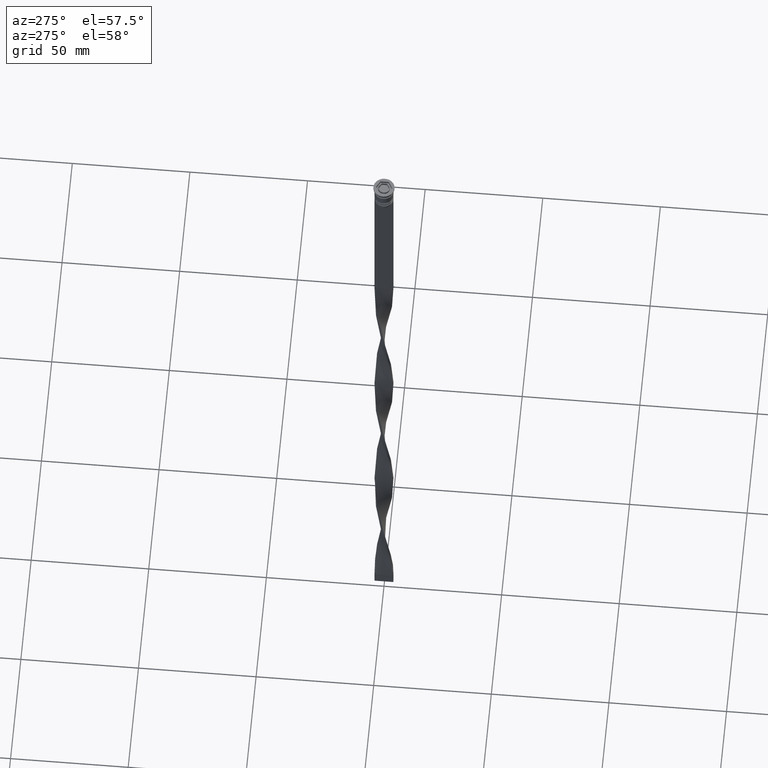
[diagram: clean part render]
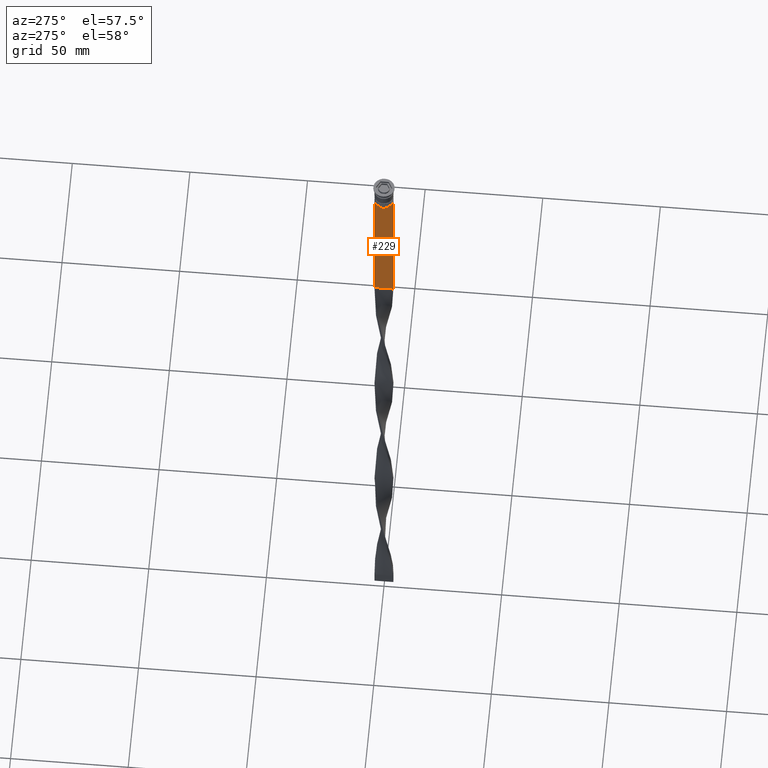
[diagram: same view with one face highlighted and labeled with its STEP entity id]
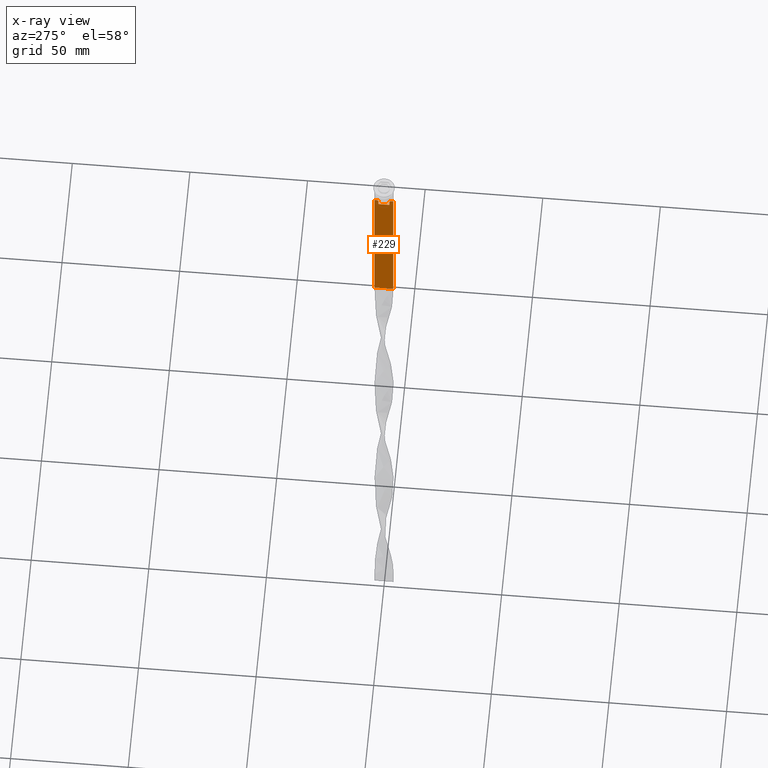
[diagram: x-ray of the same camera — body ghosted, the highlighted face saturated]
A machine part, auxiliary view. The second image highlights one B-rep face of the part: STEP entity #229.
The next image is the same camera in x-ray: the body ghosted, the highlighted face saturated — about 0% of this face is hidden behind the body in this view.
In plain terms, the highlighted planar face has unit normal (-1, 0, 0).
Its self-contained STEP definition (entity closure, byte-faithful):
#55 = ORIENTED_EDGE ( 'NONE', *, *, #612, .F. ) ;
#72 = EDGE_CURVE ( 'NONE', #4083, #3348, #4045, .T. ) ;
#106 = VERTEX_POINT ( 'NONE', #1279 ) ;
#130 = CARTESIAN_POINT ( 'NONE',  ( -0.5000000000000000000, 2.856571371417138572, -9.500000000000000000 ) ) ;
#131 = DIRECTION ( 'NONE',  ( 0.000000000000000000, -1.000000000000000000, 0.000000000000000000 ) ) ;
#188 = CARTESIAN_POINT ( 'NONE',  ( -0.5000000000000000000, -4.000000000000000000, -9.500000000000000000 ) ) ;
#196 = CARTESIAN_POINT ( 'NONE',  ( -0.5000000000000000000, 2.347338918861097135, 0.000000000000000000 ) ) ;
#198 = CARTESIAN_POINT ( 'NONE',  ( -0.5000000000000000000, 2.347338918861097135, -12.50000000000000000 ) ) ;
#229 = ADVANCED_FACE ( 'NONE', ( #289 ), #347, .T. ) ;
#244 = CARTESIAN_POINT ( 'NONE',  ( -0.5000000000000000000, -4.000000000000000000, -9.500000000000000000 ) ) ;
#289 = FACE_OUTER_BOUND ( 'NONE', #1049, .T. ) ;
#321 = LINE ( 'NONE', #3166, #2686 ) ;
#347 = PLANE ( 'NONE',  #1817 ) ;
#527 = VERTEX_POINT ( 'NONE', #2042 ) ;
#531 = VERTEX_POINT ( 'NONE', #802 ) ;
#532 = EDGE_CURVE ( 'NONE', #1357, #4083, #2663, .T. ) ;
#548 = CARTESIAN_POINT ( 'NONE',  ( -0.5000000000000000000, -2.347338918861097135, -10.00000000000000000 ) ) ;
#551 = DIRECTION ( 'NONE',  ( -0.000000000000000000, -0.000000000000000000, 1.000000000000000000 ) ) ;
#555 = EDGE_CURVE ( 'NONE', #819, #3615, #1814, .T. ) ;
#576 = LINE ( 'NONE', #4080, #1623 ) ;
#612 = EDGE_CURVE ( 'NONE', #1724, #1357, #3093, .T. ) ;
#667 = ORIENTED_EDGE ( 'NONE', *, *, #2550, .F. ) ;
#706 = VECTOR ( 'NONE', #2957, 1000.000000000000000 ) ;
#721 = CARTESIAN_POINT ( 'NONE',  ( -0.5000000000000000000, 4.000000000000000000, -9.500000000000000000 ) ) ;
#729 = ORIENTED_EDGE ( 'NONE', *, *, #2777, .F. ) ;
#773 = DIRECTION ( 'NONE',  ( 0.000000000000000000, 0.000000000000000000, -1.000000000000000000 ) ) ;
#802 = CARTESIAN_POINT ( 'NONE',  ( -0.5000000000000000000, 2.347338918861097135, -10.00000000000000000 ) ) ;
#812 = CARTESIAN_POINT ( 'NONE',  ( -0.5000000000000000000, 2.517407211010871393, -9.833663366238582171 ) ) ;
#819 = VERTEX_POINT ( 'NONE', #721 ) ;
#821 = CARTESIAN_POINT ( 'NONE',  ( -0.5000000000000000000, -2.687095498514037839, -9.666937905752043037 ) ) ;
#903 = VECTOR ( 'NONE', #131, 1000.000000000000000 ) ;
#904 = ORIENTED_EDGE ( 'NONE', *, *, #4040, .F. ) ;
#914 = ORIENTED_EDGE ( 'NONE', *, *, #72, .F. ) ;
#961 = VECTOR ( 'NONE', #3706, 1000.000000000000000 ) ;
#1007 = CARTESIAN_POINT ( 'NONE',  ( -0.5000000000000000000, -2.856571371417138572, -9.500000000000000000 ) ) ;
#1049 = EDGE_LOOP ( 'NONE', ( #667, #2126, #1139, #3889, #3898, #729, #904, #914, #2333, #55, #1378, #1428 ) ) ;
#1086 = VECTOR ( 'NONE', #3017, 1000.000000000000000 ) ;
#1139 = ORIENTED_EDGE ( 'NONE', *, *, #555, .F. ) ;
#1151 = CARTESIAN_POINT ( 'NONE',  ( -0.5000000000000000000, -2.856571371417138572, -9.500000000000000000 ) ) ;
#1266 = EDGE_CURVE ( 'NONE', #819, #2524, #576, .T. ) ;
#1279 = CARTESIAN_POINT ( 'NONE',  ( -0.5000000000000000000, -4.000000000000000000, -9.500000000000000000 ) ) ;
#1357 = VERTEX_POINT ( 'NONE', #548 ) ;
#1378 = ORIENTED_EDGE ( 'NONE', *, *, #2875, .F. ) ;
#1389 = CARTESIAN_POINT ( 'NONE',  ( -0.5000000000000000000, 2.399999999999996803, -12.50000000000000000 ) ) ;
#1394 = CARTESIAN_POINT ( 'NONE',  ( -0.5000000000000000000, 3.867815921162741422, -9.500000000000000000 ) ) ;
#1397 = VERTEX_POINT ( 'NONE', #2098 ) ;
#1428 = ORIENTED_EDGE ( 'NONE', *, *, #2954, .F. ) ;
#1450 = DIRECTION ( 'NONE',  ( 0.000000000000000000, -1.000000000000000000, 0.000000000000000000 ) ) ;
#1549 = CARTESIAN_POINT ( 'NONE',  ( -0.5000000000000000000, -4.000000000000000000, -1.437742251701450202 ) ) ;
#1623 = VECTOR ( 'NONE', #3768, 1000.000000000000000 ) ;
#1724 = VERTEX_POINT ( 'NONE', #3721 ) ;
#1787 = CARTESIAN_POINT ( 'NONE',  ( -0.5000000000000000000, -4.000000000000000000, -9.500000000000000000 ) ) ;
#1814 = LINE ( 'NONE', #244, #961 ) ;
#1817 = AXIS2_PLACEMENT_3D ( 'NONE', #1549, #3505, #3175 ) ;
#1818 = DIRECTION ( 'NONE',  ( 0.000000000000000000, -1.000000000000000000, 0.000000000000000000 ) ) ;
#2008 = CARTESIAN_POINT ( 'NONE',  ( -0.5000000000000000000, -4.000000000000000000, -78.50000000000000000 ) ) ;
#2042 = CARTESIAN_POINT ( 'NONE',  ( -0.5000000000000000000, 2.856571371417138572, -9.500000000000000000 ) ) ;
#2077 = VECTOR ( 'NONE', #551, 1000.000000000000000 ) ;
#2080 = CARTESIAN_POINT ( 'NONE',  ( -0.5000000000000000000, -2.347338918861097135, -10.00000000000000000 ) ) ;
#2098 = CARTESIAN_POINT ( 'NONE',  ( -0.5000000000000000000, -4.000000000000000000, -78.50000000000000000 ) ) ;
#2104 = B_SPLINE_CURVE_WITH_KNOTS ( 'NONE', 3,
 ( #130, #3922, #812, #3326 ),
 .UNSPECIFIED., .F., .F.,
 ( 4, 4 ),
 ( 0.004956812174141195064, 0.005670477137898153989 ),
 .UNSPECIFIED. ) ;
#2126 = ORIENTED_EDGE ( 'NONE', *, *, #2597, .F. ) ;
#2318 = LINE ( 'NONE', #2008, #706 ) ;
#2333 = ORIENTED_EDGE ( 'NONE', *, *, #532, .F. ) ;
#2524 = VERTEX_POINT ( 'NONE', #3554 ) ;
#2550 = EDGE_CURVE ( 'NONE', #527, #531, #2104, .T. ) ;
#2568 = DIRECTION ( 'NONE',  ( 0.000000000000000000, 0.000000000000000000, -1.000000000000000000 ) ) ;
#2597 = EDGE_CURVE ( 'NONE', #3615, #527, #2766, .T. ) ;
#2663 = B_SPLINE_CURVE_WITH_KNOTS ( 'NONE', 3,
 ( #2080, #2781, #821, #1151 ),
 .UNSPECIFIED., .F., .F.,
 ( 4, 4 ),
 ( 0.01178336557230038641, 0.01249758354768160454 ),
 .UNSPECIFIED. ) ;
#2686 = VECTOR ( 'NONE', #2568, 1000.000000000000000 ) ;
#2692 = LINE ( 'NONE', #1389, #903 ) ;
#2722 = CARTESIAN_POINT ( 'NONE',  ( -0.5000000000000000000, -4.000000000000000000, -9.500000000000000000 ) ) ;
#2766 = LINE ( 'NONE', #2722, #3670 ) ;
#2777 = EDGE_CURVE ( 'NONE', #106, #1397, #321, .T. ) ;
#2781 = CARTESIAN_POINT ( 'NONE',  ( -0.5000000000000000000, -2.517408374291112416, -9.833662228483172285 ) ) ;
#2875 = EDGE_CURVE ( 'NONE', #3660, #1724, #2692, .T. ) ;
#2954 = EDGE_CURVE ( 'NONE', #531, #3660, #3572, .T. ) ;
#2957 = DIRECTION ( 'NONE',  ( 0.000000000000000000, 1.000000000000000000, 0.000000000000000000 ) ) ;
#3000 = EDGE_CURVE ( 'NONE', #1397, #2524, #2318, .T. ) ;
#3011 = LINE ( 'NONE', #188, #4075 ) ;
#3017 = DIRECTION ( 'NONE',  ( 0.000000000000000000, -1.000000000000000000, 0.000000000000000000 ) ) ;
#3093 = LINE ( 'NONE', #3957, #2077 ) ;
#3166 = CARTESIAN_POINT ( 'NONE',  ( -0.5000000000000000000, -4.000000000000000000, -1.437742251701450202 ) ) ;
#3175 = DIRECTION ( 'NONE',  ( 0.000000000000000000, 0.000000000000000000, 1.000000000000000000 ) ) ;
#3326 = CARTESIAN_POINT ( 'NONE',  ( -0.5000000000000000000, 2.347338918861097135, -10.00000000000000000 ) ) ;
#3348 = VERTEX_POINT ( 'NONE', #3479 ) ;
#3479 = CARTESIAN_POINT ( 'NONE',  ( -0.5000000000000000000, -3.867815921162741422, -9.500000000000000000 ) ) ;
#3505 = DIRECTION ( 'NONE',  ( -1.000000000000000000, 0.000000000000000000, 0.000000000000000000 ) ) ;
#3554 = CARTESIAN_POINT ( 'NONE',  ( -0.5000000000000000000, 4.000000000000000000, -78.50000000000000000 ) ) ;
#3572 = LINE ( 'NONE', #196, #3801 ) ;
#3615 = VERTEX_POINT ( 'NONE', #1394 ) ;
#3660 = VERTEX_POINT ( 'NONE', #198 ) ;
#3670 = VECTOR ( 'NONE', #1818, 1000.000000000000000 ) ;
#3706 = DIRECTION ( 'NONE',  ( 0.000000000000000000, -1.000000000000000000, 0.000000000000000000 ) ) ;
#3721 = CARTESIAN_POINT ( 'NONE',  ( -0.5000000000000000000, -2.347338918861097135, -12.50000000000000000 ) ) ;
#3768 = DIRECTION ( 'NONE',  ( 0.000000000000000000, 0.000000000000000000, -1.000000000000000000 ) ) ;
#3801 = VECTOR ( 'NONE', #773, 1000.000000000000000 ) ;
#3889 = ORIENTED_EDGE ( 'NONE', *, *, #1266, .T. ) ;
#3898 = ORIENTED_EDGE ( 'NONE', *, *, #3000, .F. ) ;
#3922 = CARTESIAN_POINT ( 'NONE',  ( -0.5000000000000000000, 2.687094542495897631, -9.666938847453439010 ) ) ;
#3957 = CARTESIAN_POINT ( 'NONE',  ( -0.5000000000000000000, -2.347338918861097135, 0.000000000000000000 ) ) ;
#4040 = EDGE_CURVE ( 'NONE', #3348, #106, #3011, .T. ) ;
#4045 = LINE ( 'NONE', #1787, #1086 ) ;
#4075 = VECTOR ( 'NONE', #1450, 1000.000000000000000 ) ;
#4080 = CARTESIAN_POINT ( 'NONE',  ( -0.5000000000000000000, 4.000000000000000000, -1.437742251701450202 ) ) ;
#4083 = VERTEX_POINT ( 'NONE', #1007 ) ;